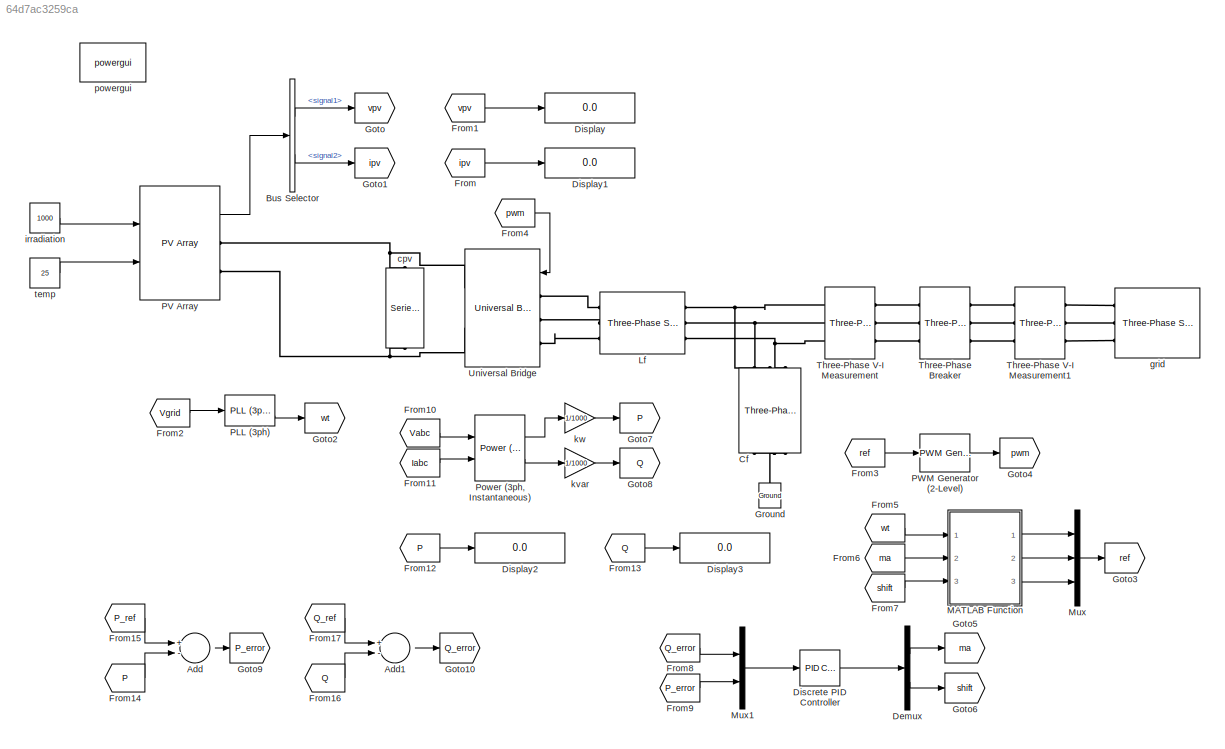
MODEL slx_64d7ac3259ca
KIND model
CONFIG AbsTol = auto
CONFIG FixedStep = auto
CONFIG MaxStep = auto
CONFIG MinStep = auto
CONFIG RelTol = 1e-3
CONFIG SampleTimeConstraint = Unconstrained
CONFIG Solver = VariableStepAuto
CONFIG SolverMode = Auto
CONFIG SolverName = VariableStepAuto
CONFIG StartTime = 0.0
CONFIG StopTime = 10.0
BLOCK [Sum] Add
  IconShape = round
  InputSameDT = off
  Inputs = +-
  OutDataTypeStr = Inherit: Inherit via internal rule
  Ports = [2, 1]
  SaturateOnIntegerOverflow = off
BLOCK [Sum] Add1
  IconShape = round
  InputSameDT = off
  Inputs = +-
  OutDataTypeStr = Inherit: Inherit via internal rule
  Ports = [2, 1]
  SaturateOnIntegerOverflow = off
BLOCK [BusSelector] Bus Selector
  OutputSignals = signal1,signal2
  Ports = [1, 2]
BLOCK [Reference] Cf  REF=powerlib/Elements/Three-Phase
Series RLC Branch
  AttributesFormatString = \n
  Ports = [0, 0, 0, 0, 0, 3, 3]
  SourceBlock = powerlib/Elements/Three-Phase\nSeries RLC Branch
  SourceType = Three-Phase Series RLC Branch
BLOCK [Demux] Demux
  DisplayOption = bar
  Outputs = 2
  Ports = [1, 2]
BLOCK [Reference] Discrete PID Controller  REF=simulink/Continuous/PID Controller
  Ports = [1, 1]
  SourceBlock = simulink/Continuous/PID Controller
  SourceType = PID 1dof
BLOCK [Display] Display
  Decimation = 1
  Ports = [1]
BLOCK [Display] Display1
  Decimation = 1
  Ports = [1]
BLOCK [Display] Display2
  Decimation = 1
  Ports = [1]
BLOCK [Display] Display3
  Decimation = 1
  Ports = [1]
BLOCK [From] From
  GotoTag = ipv
BLOCK [From] From1
  GotoTag = vpv
BLOCK [From] From10
  GotoTag = Vabc
BLOCK [From] From11
  GotoTag = Iabc
BLOCK [From] From12
  GotoTag = P
BLOCK [From] From13
  GotoTag = Q
BLOCK [From] From14
  GotoTag = P
BLOCK [From] From15
  GotoTag = P_ref
BLOCK [From] From16
  GotoTag = Q
BLOCK [From] From17
  GotoTag = Q_ref
BLOCK [From] From2
  GotoTag = Vgrid
BLOCK [From] From3
  GotoTag = ref
BLOCK [From] From4
  GotoTag = pwm
BLOCK [From] From5
  GotoTag = wt
BLOCK [From] From6
  GotoTag = ma
BLOCK [From] From7
  GotoTag = shift
BLOCK [From] From8
  GotoTag = Q_error
BLOCK [From] From9
  GotoTag = P_error
BLOCK [Goto] Goto
  GotoTag = vpv
BLOCK [Goto] Goto1
  GotoTag = ipv
BLOCK [Goto] Goto10
  GotoTag = Q_error
BLOCK [Goto] Goto2
  GotoTag = wt
BLOCK [Goto] Goto3
  GotoTag = ref
BLOCK [Goto] Goto4
  GotoTag = pwm
BLOCK [Goto] Goto5
  GotoTag = ma
BLOCK [Goto] Goto6
  GotoTag = shift
BLOCK [Goto] Goto7
  GotoTag = P
BLOCK [Goto] Goto8
  GotoTag = Q
BLOCK [Goto] Goto9
  GotoTag = P_error
BLOCK [Reference] Ground  REF=powerlib/Elements/Ground
  Ports = [0, 0, 0, 0, 0, 1]
  SourceBlock = powerlib/Elements/Ground
  SourceType = Ground
BLOCK [Reference] Lf  REF=powerlib/Elements/Three-Phase
Series RLC Branch
  AttributesFormatString = \n
  Ports = [0, 0, 0, 0, 0, 3, 3]
  SourceBlock = powerlib/Elements/Three-Phase\nSeries RLC Branch
  SourceType = Three-Phase Series RLC Branch
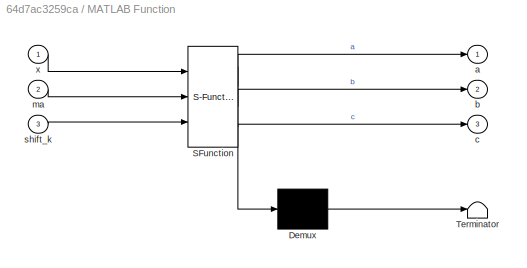
BLOCK [SubSystem] MATLAB Function
  ErrorFcn = Stateflow.Translate.translate
  PermitHierarchicalResolution = ExplicitOnly
  Ports = [3, 3]
  RequestExecContextInheritance = off
  SFBlockType = MATLAB Function
  TreatAsAtomicUnit = on
  Variant = off
BLOCK [Demux] MATLAB Function/ Demux 
  Outputs = 1
  Ports = [1, 1]
BLOCK [S-Function] MATLAB Function/ SFunction 
  EnableBusSupport = on
  FunctionName = sf_sfun
  PortCounts = [3 4]
  Ports = [3, 4]
  SFunctionDeploymentMode = off
  Tag = Stateflow S-Function mppt_invert 2
BLOCK [Terminator] MATLAB Function/ Terminator 
BLOCK [Outport] MATLAB Function/a
  IconDisplay = Port number
BLOCK [Outport] MATLAB Function/b
  IconDisplay = Port number
  Port = 2
BLOCK [Outport] MATLAB Function/c
  IconDisplay = Port number
  Port = 3
BLOCK [Inport] MATLAB Function/ma
  IconDisplay = Port number
  Port = 2
BLOCK [Inport] MATLAB Function/shift_k
  IconDisplay = Port number
  Port = 3
BLOCK [Inport] MATLAB Function/x
  IconDisplay = Port number
BLOCK [Mux] Mux
  DisplayOption = bar
  Inputs = 3
  Ports = [3, 1]
BLOCK [Mux] Mux1
  DisplayOption = bar
  Inputs = 2
  Ports = [2, 1]
BLOCK [Reference] PLL (3ph)  REF=powerlib_meascontrol/PLL/PLL
(3ph)
  Ports = [1, 2]
  SourceBlock = powerlib_meascontrol/PLL/PLL\n(3ph)
  SourceType = PLL (3ph)
BLOCK [Reference] PV Array  REF=re_lib/Solar/PV Array
  Ports = [2, 1, 0, 0, 0, 0, 2]
  SourceBlock = re_lib/Solar/PV Array
  SourceType = PV array
BLOCK [Reference] PWM Generator (2-Level)  REF=powerlib_meascontrol/Pulse & Signal
Generators/PWM Generator
(2-Level)
  Ports = [1, 1]
  SourceBlock = powerlib_meascontrol/Pulse & Signal\nGenerators/PWM Generator\n(2-Level)
  SourceType = PWM Generator (2-Level)
BLOCK [Reference] Power (3ph, Instantaneous)  REF=powerlib_meascontrol/Measurements/Power
(3ph, Instantaneous)
  Ports = [2, 2]
  SourceBlock = powerlib_meascontrol/Measurements/Power\n(3ph, Instantaneous)
  SourceType = Power (3ph, Instantaneous)
BLOCK [Reference] Three-Phase Breaker  REF=powerlib/Elements/Three-Phase Breaker
  Ports = [0, 0, 0, 0, 0, 3, 3]
  SourceBlock = powerlib/Elements/Three-Phase Breaker
  SourceType = Three-Phase Breaker
BLOCK [Reference] Three-Phase V-I Measurement  REF=powerlib/Measurements/Three-Phase
V-I Measurement
  Ports = [0, 0, 0, 0, 0, 3, 3]
  SourceBlock = powerlib/Measurements/Three-Phase\nV-I Measurement
  SourceType = Three-Phase VI Measurement
BLOCK [Reference] Three-Phase V-I Measurement1  REF=powerlib/Measurements/Three-Phase
V-I Measurement
  Ports = [0, 0, 0, 0, 0, 3, 3]
  SourceBlock = powerlib/Measurements/Three-Phase\nV-I Measurement
  SourceType = Three-Phase VI Measurement
BLOCK [Reference] Universal Bridge  REF=powerlib/Power
Electronics/Universal Bridge
  Ports = [1, 0, 0, 0, 0, 3, 2]
  SourceBlock = powerlib/Power\nElectronics/Universal Bridge
  SourceType = Universal Bridge
BLOCK [Reference] cpv  REF=powerlib/Elements/Series RLC Branch
  Ports = [0, 0, 0, 0, 0, 1, 1]
  SourceBlock = powerlib/Elements/Series RLC Branch
  SourceType = Series RLC Branch
BLOCK [Reference] grid  REF=powerlib/Electrical
Sources/Three-Phase Source
  Ports = [0, 0, 0, 0, 0, 0, 3]
  SourceBlock = powerlib/Electrical\nSources/Three-Phase Source
  SourceType = Three-Phase Source
BLOCK [Constant] irradiation
  Value = 1000
BLOCK [Gain] kvar
  Gain = 1/1000
  OutDataTypeStr = Inherit: Inherit via internal rule
  ParamDataTypeStr = Inherit: Inherit via internal rule
  SaturateOnIntegerOverflow = off
BLOCK [Gain] kw
  Gain = 1/1000
  OutDataTypeStr = Inherit: Inherit via internal rule
  ParamDataTypeStr = Inherit: Inherit via internal rule
  SaturateOnIntegerOverflow = off
BLOCK [Reference] powergui  REF=powerlib/powergui
  Ports = []
  Priority = 1
  SourceBlock = powerlib/powergui
  SourceType = PSB option menu block
  UserDataPersistent = on
BLOCK [Constant] temp 
  Value = 25
LINE Add1:1 -> Goto10:1
LINE Add:1 -> Goto9:1
LINE Bus Selector:1 -> Goto:1
LINE Bus Selector:2 -> Goto1:1
LINE Demux:1 -> Goto5:1
LINE Demux:2 -> Goto6:1
LINE Discrete PID Controller:1 -> Demux:1
LINE From10:1 -> Power (3ph, Instantaneous):1
LINE From11:1 -> Power (3ph, Instantaneous):2
LINE From12:1 -> Display2:1
LINE From13:1 -> Display3:1
LINE From14:1 -> Add:2
LINE From15:1 -> Add:1
LINE From16:1 -> Add1:2
LINE From17:1 -> Add1:1
LINE From1:1 -> Display:1
LINE From2:1 -> PLL (3ph):1
LINE From3:1 -> PWM Generator (2-Level):1
LINE From4:1 -> Universal Bridge:1
LINE From5:1 -> MATLAB Function:1
LINE From6:1 -> MATLAB Function:2
LINE From7:1 -> MATLAB Function:3
LINE From8:1 -> Mux1:1
LINE From9:1 -> Mux1:2
LINE From:1 -> Display1:1
LINE MATLAB Function:1 -> Mux:1
LINE MATLAB Function:2 -> Mux:2
LINE MATLAB Function:3 -> Mux:3
LINE Mux1:1 -> Discrete PID Controller:1
LINE Mux:1 -> Goto3:1
LINE PLL (3ph):2 -> Goto2:1
LINE PV Array:1 -> Bus Selector:1
LINE PWM Generator (2-Level):1 -> Goto4:1
LINE Power (3ph, Instantaneous):1 -> kw:1
LINE Power (3ph, Instantaneous):2 -> kvar:1
LINE irradiation:1 -> PV Array:1
LINE kvar:1 -> Goto8:1
LINE kw:1 -> Goto7:1
LINE temp :1 -> PV Array:2
PNET net1: Cf:LConn1 -- Lf:RConn1 -- Three-Phase V-I Measurement:LConn1
PNET net2: Cf:LConn2 -- Lf:RConn2 -- Three-Phase V-I Measurement:LConn2
PNET net3: Cf:LConn3 -- Lf:RConn3 -- Three-Phase V-I Measurement:LConn3
PNET net4: Cf:RConn1 -- Cf:RConn2 -- Cf:RConn3 -- Ground:LConn1
PLINE Lf:LConn1 -- Universal Bridge:LConn1
PLINE Lf:LConn2 -- Universal Bridge:LConn2
PLINE Lf:LConn3 -- Universal Bridge:LConn3
PNET net5: PV Array:RConn1 -- Universal Bridge:RConn1 -- cpv:LConn1
PNET net6: PV Array:RConn2 -- Universal Bridge:RConn2 -- cpv:RConn1
PLINE Three-Phase Breaker:LConn1 -- Three-Phase V-I Measurement:RConn1
PLINE Three-Phase Breaker:LConn2 -- Three-Phase V-I Measurement:RConn2
PLINE Three-Phase Breaker:LConn3 -- Three-Phase V-I Measurement:RConn3
PLINE Three-Phase Breaker:RConn1 -- Three-Phase V-I Measurement1:RConn1
PLINE Three-Phase Breaker:RConn2 -- Three-Phase V-I Measurement1:RConn2
PLINE Three-Phase Breaker:RConn3 -- Three-Phase V-I Measurement1:RConn3
PLINE Three-Phase V-I Measurement1:LConn1 -- grid:RConn1
PLINE Three-Phase V-I Measurement1:LConn2 -- grid:RConn2
PLINE Three-Phase V-I Measurement1:LConn3 -- grid:RConn3
note: PNET lines group multi-terminal physical nets as a canonical sorted terminal list (undirected conserving connections); 2-terminal nets keep the pairwise PLINE form
CHART MATLAB Function states=1 transitions=1
  STATE_LABEL 'eML_blk_kernel()'
  STATE_LABEL 'SCRIPT:\nfunction [a,b,c] =ref_generation(x,ma,shift_k)\na=(ma*(sin((x)+shift_k)));\nb=(ma*(sin((x)+shift_k-(2*pi/3))));\nc=(ma*(sin((x)+shift_k+(2*pi/3))));'
